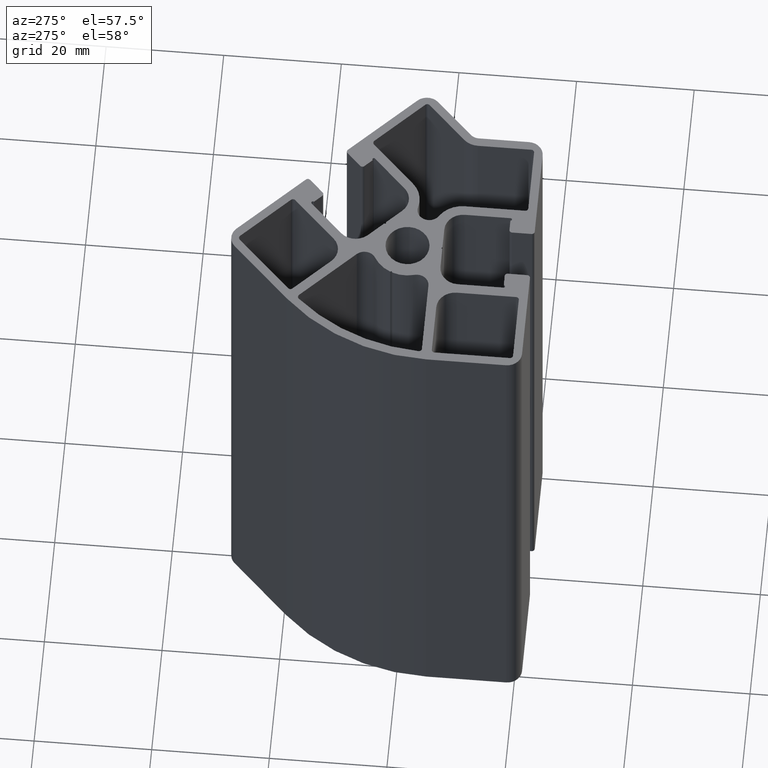
[diagram: clean part render]
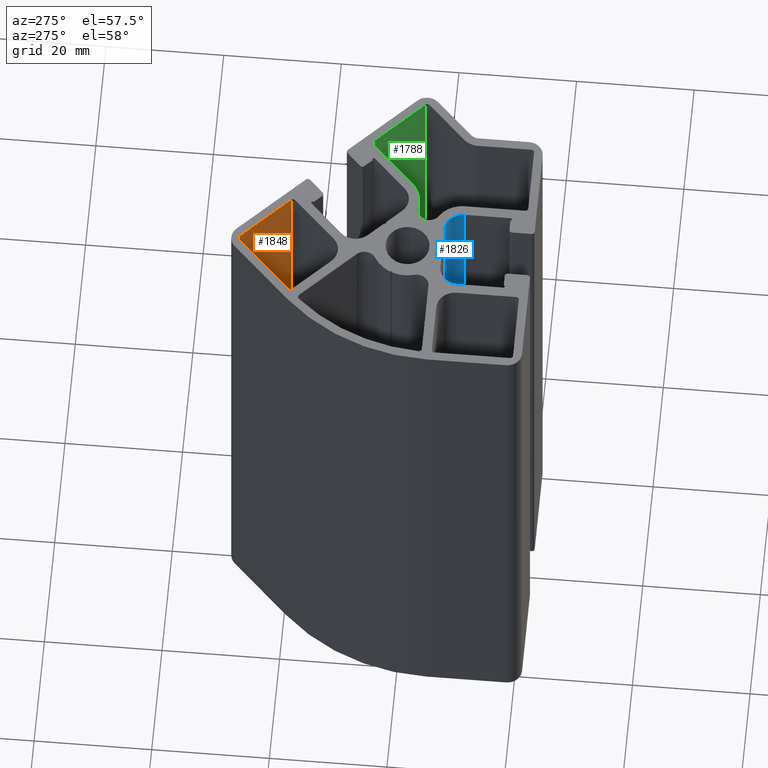
[diagram: same view with three faces highlighted in distinct colors, each labeled with its STEP entity id]
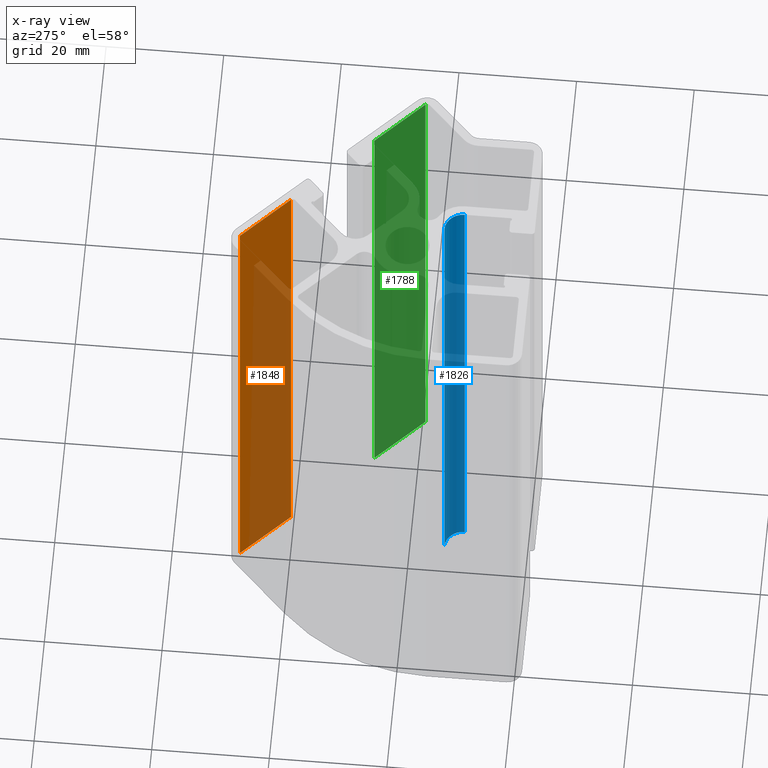
[diagram: x-ray of the same camera — body ghosted, the three highlighted faces saturated]
A machine part, auxiliary view with three faces highlighted in distinct colors.
The next image is the same camera in x-ray (body ghosted, the three faces saturated) — at least one of them is partly hidden behind the body in this view.
Their STEP definitions:

[orange] entity #1848 — the highlighted planar face has unit normal (0.7071, 0.7071, 0).
#226=FACE_OUTER_BOUND('',#321,.T.);
#321=EDGE_LOOP('',(#1434,#1435,#1436,#1437));
#480=LINE('',#2992,#663);
#484=LINE('',#3005,#667);
#485=LINE('',#3007,#668);
#486=LINE('',#3008,#669);
#663=VECTOR('',#2433,100.);
#667=VECTOR('',#2447,100.);
#668=VECTOR('',#2450,11.3);
#669=VECTOR('',#2451,11.3);
#853=VERTEX_POINT('',#2989);
#854=VERTEX_POINT('',#2991);
#857=VERTEX_POINT('',#3001);
#858=VERTEX_POINT('',#3003);
#1093=EDGE_CURVE('',#853,#854,#480,.T.);
#1100=EDGE_CURVE('',#858,#857,#484,.T.);
#1101=EDGE_CURVE('',#853,#857,#485,.T.);
#1102=EDGE_CURVE('',#854,#858,#486,.T.);
#1434=ORIENTED_EDGE('',*,*,#1101,.T.);
#1435=ORIENTED_EDGE('',*,*,#1100,.F.);
#1436=ORIENTED_EDGE('',*,*,#1102,.F.);
#1437=ORIENTED_EDGE('',*,*,#1093,.F.);
#1767=PLANE('',#2010);
#1848=ADVANCED_FACE('',(#226),#1767,.F.);
#2010=AXIS2_PLACEMENT_3D('',#3006,#2448,#2449);
#2433=DIRECTION('',(0.,0.,-1.));
#2447=DIRECTION('',(0.,0.,1.));
#2448=DIRECTION('center_axis',(0.707106781186548,0.707106781186547,0.));
#2449=DIRECTION('ref_axis',(-0.707106781186547,0.707106781186548,0.));
#2450=DIRECTION('',(-0.707106781186547,0.707106781186548,0.));
#2451=DIRECTION('',(-0.707106781186547,0.707106781186548,0.));
#2989=CARTESIAN_POINT('',(7.44583440589436,20.4565991797268,100.));
#2991=CARTESIAN_POINT('',(7.44583440589436,20.4565991797268,0.));
#2992=CARTESIAN_POINT('',(7.44583440589436,20.4565991797268,0.));
#3001=CARTESIAN_POINT('',(-0.544472221513623,28.4469058071348,100.));
#3003=CARTESIAN_POINT('',(-0.544472221513623,28.4469058071348,0.));
#3005=CARTESIAN_POINT('',(-0.544472221513623,28.4469058071348,0.));
#3006=CARTESIAN_POINT('Origin',(7.44583440589436,20.4565991797268,0.));
#3007=CARTESIAN_POINT('',(10.5397755993525,17.3626579862687,100.));
#3008=CARTESIAN_POINT('',(10.5397755993525,17.3626579862687,0.));

[blue] entity #1826 — the highlighted cylindrical surface (edge-blend (fillet) strip) has radius 3.2 mm, axis along (0, 0, 1).
#66=CIRCLE('',#1963,3.2);
#67=CIRCLE('',#1964,3.2);
#138=CYLINDRICAL_SURFACE('',#1962,3.2);
#204=FACE_OUTER_BOUND('',#298,.T.);
#298=EDGE_LOOP('',(#1348,#1349,#1350,#1351));
#446=LINE('',#2879,#629);
#448=LINE('',#2885,#631);
#629=VECTOR('',#2313,100.);
#631=VECTOR('',#2319,100.);
#817=VERTEX_POINT('',#2876);
#818=VERTEX_POINT('',#2878);
#819=VERTEX_POINT('',#2882);
#820=VERTEX_POINT('',#2884);
#1036=EDGE_CURVE('',#817,#818,#446,.T.);
#1038=EDGE_CURVE('',#817,#819,#66,.T.);
#1039=EDGE_CURVE('',#819,#820,#448,.T.);
#1040=EDGE_CURVE('',#818,#820,#67,.T.);
#1348=ORIENTED_EDGE('',*,*,#1038,.T.);
#1349=ORIENTED_EDGE('',*,*,#1039,.T.);
#1350=ORIENTED_EDGE('',*,*,#1040,.F.);
#1351=ORIENTED_EDGE('',*,*,#1036,.F.);
#1826=ADVANCED_FACE('',(#204),#138,.F.);
#1962=AXIS2_PLACEMENT_3D('',#2881,#2315,#2316);
#1963=AXIS2_PLACEMENT_3D('',#2883,#2317,#2318);
#1964=AXIS2_PLACEMENT_3D('',#2886,#2320,#2321);
#2313=DIRECTION('',(0.,0.,-1.));
#2315=DIRECTION('center_axis',(0.,0.,1.));
#2316=DIRECTION('ref_axis',(1.,-3.46944695195361E-16,0.));
#2317=DIRECTION('center_axis',(0.,0.,1.));
#2318=DIRECTION('ref_axis',(1.,-3.46944695195361E-16,0.));
#2319=DIRECTION('',(0.,0.,-1.));
#2320=DIRECTION('center_axis',(0.,0.,1.));
#2321=DIRECTION('ref_axis',(1.,-3.46944695195361E-16,0.));
#2876=CARTESIAN_POINT('',(7.,-9.13000000000001,100.));
#2878=CARTESIAN_POINT('',(7.,-9.13000000000001,0.));
#2879=CARTESIAN_POINT('',(7.,-9.13000000000001,0.));
#2881=CARTESIAN_POINT('Origin',(3.8,-9.13,0.));
#2882=CARTESIAN_POINT('',(3.8,-5.93,100.));
#2883=CARTESIAN_POINT('Origin',(3.8,-9.13,100.));
#2884=CARTESIAN_POINT('',(3.8,-5.93,0.));
#2885=CARTESIAN_POINT('',(3.8,-5.93,0.));
#2886=CARTESIAN_POINT('Origin',(3.8,-9.13,0.));

[green] entity #1788 — the highlighted planar face has unit normal (0.7071, 0.7071, 0).
#166=FACE_OUTER_BOUND('',#260,.T.);
#260=EDGE_LOOP('',(#1196,#1197,#1198,#1199));
#367=LINE('',#2639,#550);
#368=LINE('',#2643,#551);
#369=LINE('',#2645,#552);
#370=LINE('',#2646,#553);
#550=VECTOR('',#2080,100.);
#551=VECTOR('',#2085,11.3);
#552=VECTOR('',#2086,100.);
#553=VECTOR('',#2087,11.3);
#733=VERTEX_POINT('',#2636);
#734=VERTEX_POINT('',#2638);
#735=VERTEX_POINT('',#2642);
#736=VERTEX_POINT('',#2644);
#918=EDGE_CURVE('',#734,#733,#367,.T.);
#920=EDGE_CURVE('',#733,#735,#368,.T.);
#921=EDGE_CURVE('',#736,#735,#369,.T.);
#922=EDGE_CURVE('',#734,#736,#370,.T.);
#1196=ORIENTED_EDGE('',*,*,#920,.T.);
#1197=ORIENTED_EDGE('',*,*,#921,.F.);
#1198=ORIENTED_EDGE('',*,*,#922,.F.);
#1199=ORIENTED_EDGE('',*,*,#918,.T.);
#1739=PLANE('',#1886);
#1788=ADVANCED_FACE('',(#166),#1739,.F.);
#1886=AXIS2_PLACEMENT_3D('',#2641,#2083,#2084);
#2080=DIRECTION('',(0.,0.,1.));
#2083=DIRECTION('center_axis',(0.707106781186548,0.707106781186548,0.));
#2084=DIRECTION('ref_axis',(-0.707106781186548,0.707106781186548,0.));
#2085=DIRECTION('',(-0.707106781186547,0.707106781186547,0.));
#2086=DIRECTION('',(0.,0.,1.));
#2087=DIRECTION('',(-0.707106781186547,0.707106781186547,0.));
#2636=CARTESIAN_POINT('',(28.4469058071348,-0.544472221513662,100.));
#2638=CARTESIAN_POINT('',(28.4469058071348,-0.544472221513662,0.));
#2639=CARTESIAN_POINT('',(28.4469058071348,-0.544472221513662,0.));
#2641=CARTESIAN_POINT('Origin',(28.4469058071348,-0.544472221513662,0.));
#2642=CARTESIAN_POINT('',(20.4565991797268,7.44583440589431,100.));
#2643=CARTESIAN_POINT('',(21.0403112999727,6.86212228564846,100.));
#2644=CARTESIAN_POINT('',(20.4565991797268,7.44583440589431,0.));
#2645=CARTESIAN_POINT('',(20.4565991797268,7.44583440589431,0.));
#2646=CARTESIAN_POINT('',(21.0403112999727,6.86212228564846,0.));